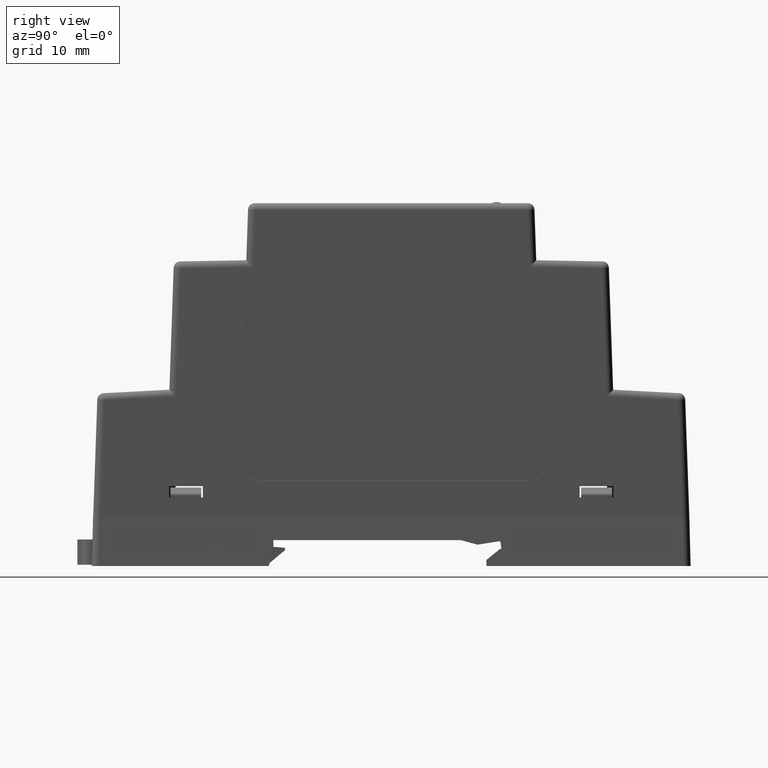
[diagram: clean part render]
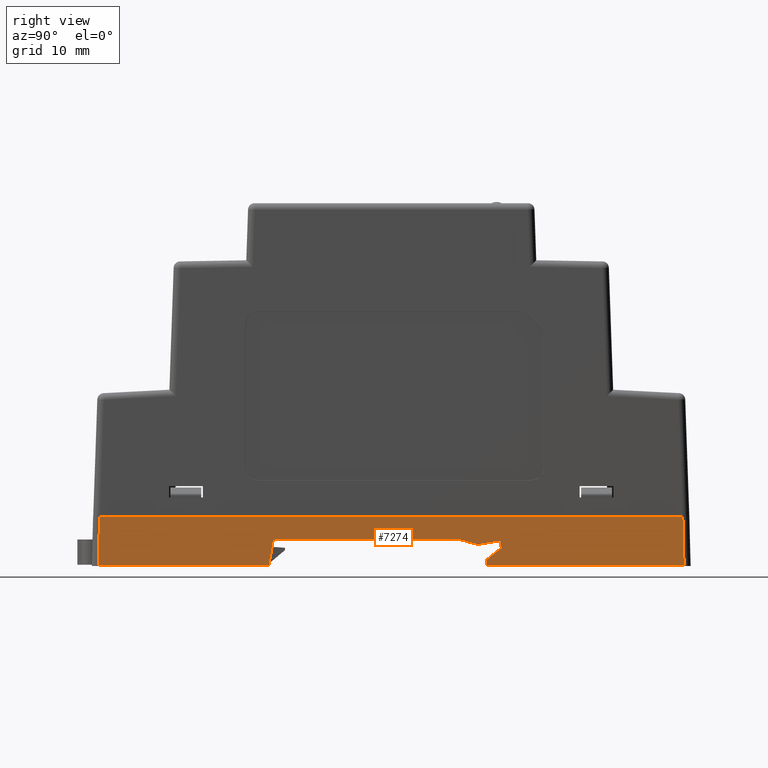
[diagram: same view with one face highlighted and labeled with its STEP entity id]
A machine part, right view. The second image highlights one B-rep face of the part: STEP entity #7274.
In plain terms, the highlighted planar face has unit normal (0.9997, 0, 0.0262).
Its self-contained STEP definition (entity closure, byte-faithful):
#4231=CARTESIAN_POINT('',(12.249999388130002,45.001132675030007,2.950421E-014));
#4232=VERTEX_POINT('',#4231);
#4284=CARTESIAN_POINT('',(12.249999388130902,-45.001132675027009,-2.375877E-014));
#4285=VERTEX_POINT('',#4284);
#4293=CARTESIAN_POINT('',(12.249999388130902,-45.001132675027009,-2.375877E-014));
#4294=DIRECTION('',(0.0,1.0,0.0));
#4295=VECTOR('',#4294,90.002265350057016);
#4296=LINE('',#4293,#4295);
#4297=EDGE_CURVE('',#4285,#4232,#4296,.T.);
#6807=CARTESIAN_POINT('',(12.449012400764701,-45.200145687693606,-7.600000321396792));
#6808=VERTEX_POINT('',#6807);
#6841=CARTESIAN_POINT('',(12.449012400760004,-18.885819338950000,-7.600000321397000));
#6842=VERTEX_POINT('',#6841);
#6849=CARTESIAN_POINT('',(12.449012400760004,-18.885819338950000,-7.600000321397000));
#6850=DIRECTION('',(1.785516E-013,-1.0,7.931874E-015));
#6851=VECTOR('',#6850,26.314326348743606);
#6852=LINE('',#6849,#6851);
#6853=EDGE_CURVE('',#6842,#6808,#6852,.T.);
#6870=CARTESIAN_POINT('',(12.249999388130902,-45.001132675027009,-2.375877E-014));
#6871=DIRECTION('',(0.026167984303307,-0.026167984307620,-0.999315001986250));
#6872=VECTOR('',#6871,7.605209875055334);
#6873=LINE('',#6870,#6872);
#6874=EDGE_CURVE('',#4285,#6808,#6873,.T.);
#7168=CARTESIAN_POINT('',(12.344268712230004,-18.185819324920001,-3.600000241238000));
#7169=VERTEX_POINT('',#7168);
#7176=CARTESIAN_POINT('',(12.344268712230004,-18.185819324920001,-3.600000241238000));
#7177=DIRECTION('',(0.025785354176160,-0.172323015719567,-0.984702946965898));
#7178=VECTOR('',#7177,4.062138833324248);
#7179=LINE('',#7176,#7178);
#7180=EDGE_CURVE('',#7169,#6842,#7179,.T.);
#7185=CARTESIAN_POINT('',(12.211161463960000,-45.966455344520014,1.483160484062000));
#7186=DIRECTION('',(0.999657324974553,0.0,0.026176948346239));
#7187=DIRECTION('',(0.026176948346239,0.0,-0.999657324974553));
#7188=AXIS2_PLACEMENT_3D('',#7185,#7186,#7187);
#7189=PLANE('',#7188);
#7190=CARTESIAN_POINT('',(12.449012400760004,45.200145687689989,-7.600000321397000));
#7191=VERTEX_POINT('',#7190);
#7192=CARTESIAN_POINT('',(12.249999388130002,45.001132675030007,2.950421E-014));
#7193=DIRECTION('',(0.026167984302807,0.026167984306752,-0.999315001986285));
#7194=VECTOR('',#7193,7.605209875055325);
#7195=LINE('',#7192,#7194);
#7196=EDGE_CURVE('',#4232,#7191,#7195,.T.);
#7197=ORIENTED_EDGE('',*,*,#7196,.F.);
#7198=ORIENTED_EDGE('',*,*,#4297,.F.);
#7199=ORIENTED_EDGE('',*,*,#6874,.T.);
#7200=ORIENTED_EDGE('',*,*,#6853,.F.);
#7201=ORIENTED_EDGE('',*,*,#7180,.F.);
#7202=CARTESIAN_POINT('',(12.344268712230004,10.720751549950000,-3.600000241188002));
#7203=VERTEX_POINT('',#7202);
#7204=CARTESIAN_POINT('',(12.344268712230004,-18.185819324920001,-3.600000241238000));
#7205=DIRECTION('',(0.0,1.0,1.729680E-012));
#7206=VECTOR('',#7205,28.906570874869999);
#7207=LINE('',#7204,#7206);
#7208=EDGE_CURVE('',#7169,#7203,#7207,.T.);
#7209=ORIENTED_EDGE('',*,*,#7208,.T.);
#7210=CARTESIAN_POINT('',(12.362598857360005,13.320751549940004,-4.300000241157001));
#7211=VERTEX_POINT('',#7210);
#7212=CARTESIAN_POINT('',(12.362598857360005,13.320751549940004,-4.300000241157001));
#7213=DIRECTION('',(-0.006807487256173,-0.965593384037959,0.259967449538168));
#7214=VECTOR('',#7213,2.692644795387076);
#7215=LINE('',#7212,#7214);
#7216=EDGE_CURVE('',#7211,#7203,#7215,.T.);
#7217=ORIENTED_EDGE('',*,*,#7216,.F.);
#7218=CARTESIAN_POINT('',(12.348153475750001,16.820751549940002,-3.748353374365002));
#7219=VERTEX_POINT('',#7218);
#7220=CARTESIAN_POINT('',(12.348153475750001,16.820751549940002,-3.748353374365002));
#7221=DIRECTION('',(0.004076889233259,-0.987797532917119,-0.155690118302456));
#7222=VECTOR('',#7221,3.543236223382697);
#7223=LINE('',#7220,#7222);
#7224=EDGE_CURVE('',#7219,#7211,#7223,.T.);
#7225=ORIENTED_EDGE('',*,*,#7224,.F.);
#7226=CARTESIAN_POINT('',(12.380532782970000,17.020751549939995,-4.984869228487002));
#7227=VERTEX_POINT('',#7226);
#7228=CARTESIAN_POINT('',(12.380532782970000,17.020751549939995,-4.984869228487002));
#7229=DIRECTION('',(-0.025841336838447,-0.159616366482874,0.986840838667111));
#7230=VECTOR('',#7229,1.253004340387975);
#7231=LINE('',#7228,#7230);
#7232=EDGE_CURVE('',#7227,#7219,#7231,.T.);
#7233=ORIENTED_EDGE('',*,*,#7232,.F.);
#7234=CARTESIAN_POINT('',(12.380532782970000,16.820751549950007,-4.984869228487002));
#7235=VERTEX_POINT('',#7234);
#7236=CARTESIAN_POINT('',(12.380532782970000,16.820751549950007,-4.984869228487002));
#7237=DIRECTION('',(0.0,1.0,0.0));
#7238=VECTOR('',#7237,0.199999999989988);
#7239=LINE('',#7236,#7238);
#7240=EDGE_CURVE('',#7235,#7227,#7239,.T.);
#7241=ORIENTED_EDGE('',*,*,#7240,.F.);
#7242=CARTESIAN_POINT('',(12.425664886620002,14.697601686499997,-6.708394729307000));
#7243=VERTEX_POINT('',#7242);
#7244=CARTESIAN_POINT('',(12.425664886620002,14.697601686499997,-6.708394729307000));
#7245=DIRECTION('',(-0.016501553741176,0.776282706518425,0.630168912502478));
#7246=VECTOR('',#7245,2.735021462699057);
#7247=LINE('',#7244,#7246);
#7248=EDGE_CURVE('',#7243,#7235,#7247,.T.);
#7249=ORIENTED_EDGE('',*,*,#7248,.F.);
#7250=CARTESIAN_POINT('',(12.446393806598630,14.697601686876023,-7.500000242980200));
#7251=VERTEX_POINT('',#7250);
#7252=CARTESIAN_POINT('',(12.446393806546764,14.697601686499997,-7.500000242981557));
#7253=DIRECTION('',(-0.026176948346239,0.0,0.999657324974553));
#7254=VECTOR('',#7253,0.791876870101210);
#7255=LINE('',#7252,#7254);
#7256=EDGE_CURVE('',#7251,#7243,#7255,.T.);
#7257=ORIENTED_EDGE('',*,*,#7256,.F.);
#7258=CARTESIAN_POINT('',(12.449012400658567,14.740671999300012,-7.600000320931693));
#7259=VERTEX_POINT('',#7258);
#7260=CARTESIAN_POINT('',(12.449012400743875,14.740671999724340,-7.600000320746700));
#7261=DIRECTION('',(-0.024043108992863,-0.395458073439246,0.918169287801371));
#7262=VECTOR('',#7261,0.108912462268813);
#7263=LINE('',#7260,#7262);
#7264=EDGE_CURVE('',#7259,#7251,#7263,.T.);
#7265=ORIENTED_EDGE('',*,*,#7264,.F.);
#7266=CARTESIAN_POINT('',(12.449012400760896,45.200145687689982,-7.600000321397000));
#7267=DIRECTION('',(0.0,-1.0,0.0));
#7268=VECTOR('',#7267,30.459473688389970);
#7269=LINE('',#7266,#7268);
#7270=EDGE_CURVE('',#7191,#7259,#7269,.T.);
#7271=ORIENTED_EDGE('',*,*,#7270,.F.);
#7272=EDGE_LOOP('',(#7197,#7198,#7199,#7200,#7201,#7209,#7217,#7225,#7233,#7241,#7249,#7257,#7265,#7271));
#7273=FACE_OUTER_BOUND('',#7272,.T.);
#7274=ADVANCED_FACE('',(#7273),#7189,.T.);